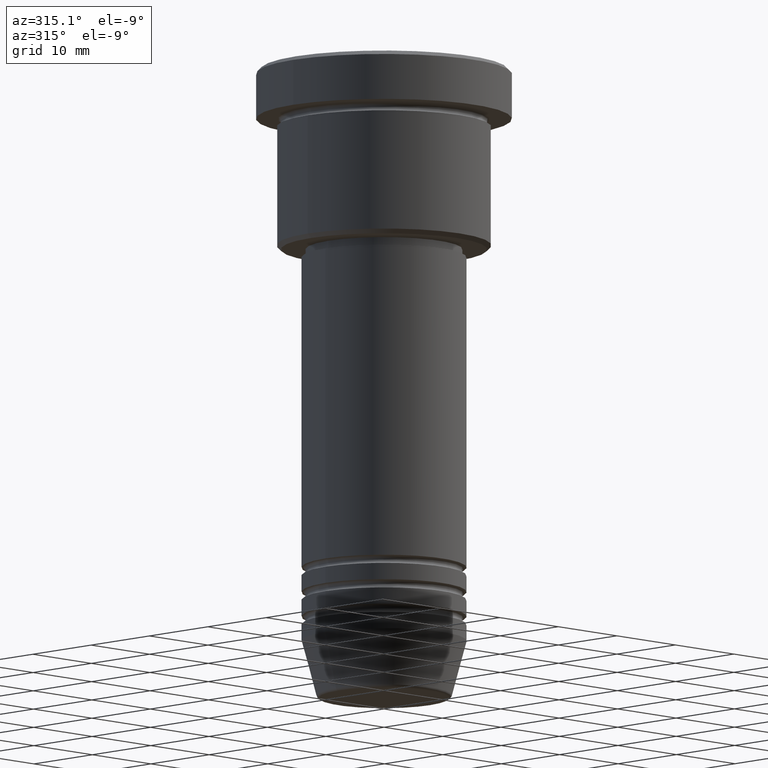
[diagram: clean part render]
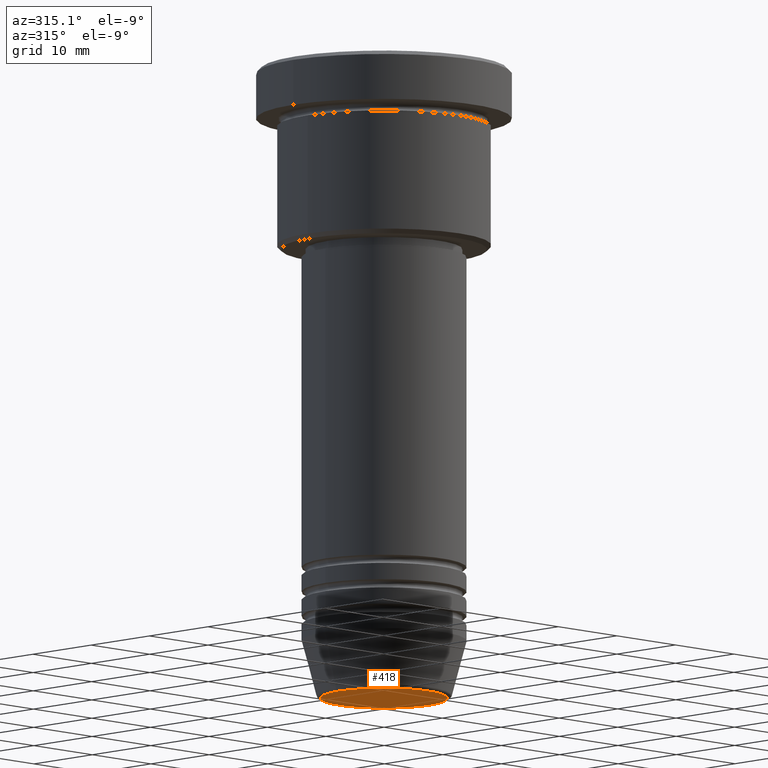
[diagram: same view with one face highlighted and labeled with its STEP entity id]
A machine part, auxiliary view. The second image highlights one B-rep face of the part: STEP entity #418.
In plain terms, the highlighted planar face has unit normal (0, -0, 1).
Its self-contained STEP definition (entity closure, byte-faithful):
#141 = DIRECTION ( 'NONE',  ( 1.000000000000000000, 0.000000000000000000, 0.000000000000000000 ) ) ;
#147 = DIRECTION ( 'NONE',  ( 0.000000000000000000, -0.000000000000000000, 1.000000000000000000 ) ) ;
#156 = CARTESIAN_POINT ( 'NONE',  ( 0.000000000000000000, 0.000000000000000000, -77.00000000000001421 ) ) ;
#162 = PLANE ( 'NONE',  #1103 ) ;
#176 = AXIS2_PLACEMENT_3D ( 'NONE', #334, #424, #693 ) ;
#179 = DIRECTION ( 'NONE',  ( 1.000000000000000000, 0.000000000000000000, 0.000000000000000000 ) ) ;
#187 = DIRECTION ( 'NONE',  ( 0.000000000000000000, 0.000000000000000000, -1.000000000000000000 ) ) ;
#334 = CARTESIAN_POINT ( 'NONE',  ( 0.000000000000000000, 0.000000000000000000, -77.00000000000001421 ) ) ;
#375 = ORIENTED_EDGE ( 'NONE', *, *, #505, .T. ) ;
#400 = AXIS2_PLACEMENT_3D ( 'NONE', #985, #187, #179 ) ;
#415 = FACE_OUTER_BOUND ( 'NONE', #890, .T. ) ;
#418 = ADVANCED_FACE ( 'NONE', ( #415 ), #162, .F. ) ;
#424 = DIRECTION ( 'NONE',  ( 0.000000000000000000, 0.000000000000000000, -1.000000000000000000 ) ) ;
#505 = EDGE_CURVE ( 'NONE', #555, #860, #947, .T. ) ;
#542 = CARTESIAN_POINT ( 'NONE',  ( 7.740692158992654726, 0.000000000000000000, -77.00000000000001421 ) ) ;
#555 = VERTEX_POINT ( 'NONE', #542 ) ;
#693 = DIRECTION ( 'NONE',  ( 1.000000000000000000, 0.000000000000000000, 0.000000000000000000 ) ) ;
#763 = CARTESIAN_POINT ( 'NONE',  ( -7.740692158992654726, 9.775343368540039135E-16, -77.00000000000001421 ) ) ;
#860 = VERTEX_POINT ( 'NONE', #763 ) ;
#890 = EDGE_LOOP ( 'NONE', ( #375, #1180 ) ) ;
#947 = CIRCLE ( 'NONE', #176, 7.740692158992654726 ) ;
#985 = CARTESIAN_POINT ( 'NONE',  ( 0.000000000000000000, 0.000000000000000000, -77.00000000000001421 ) ) ;
#1029 = CIRCLE ( 'NONE', #400, 7.740692158992654726 ) ;
#1103 = AXIS2_PLACEMENT_3D ( 'NONE', #156, #147, #141 ) ;
#1176 = EDGE_CURVE ( 'NONE', #860, #555, #1029, .T. ) ;
#1180 = ORIENTED_EDGE ( 'NONE', *, *, #1176, .T. ) ;